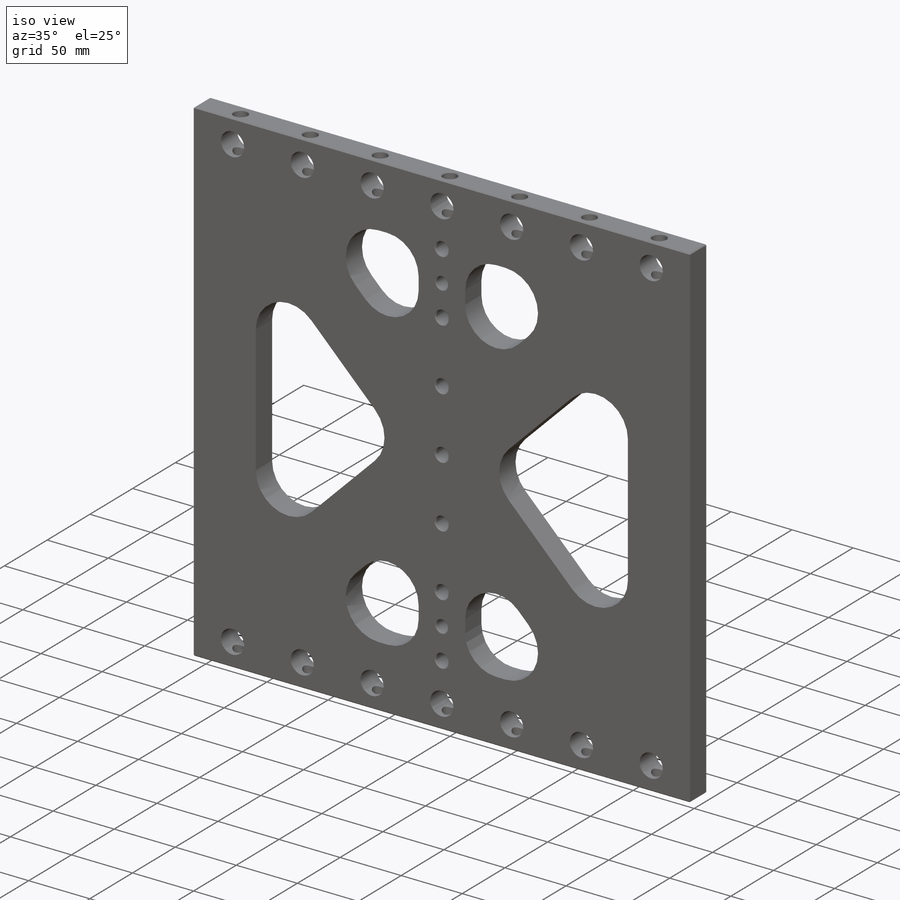
[diagram: iso view]
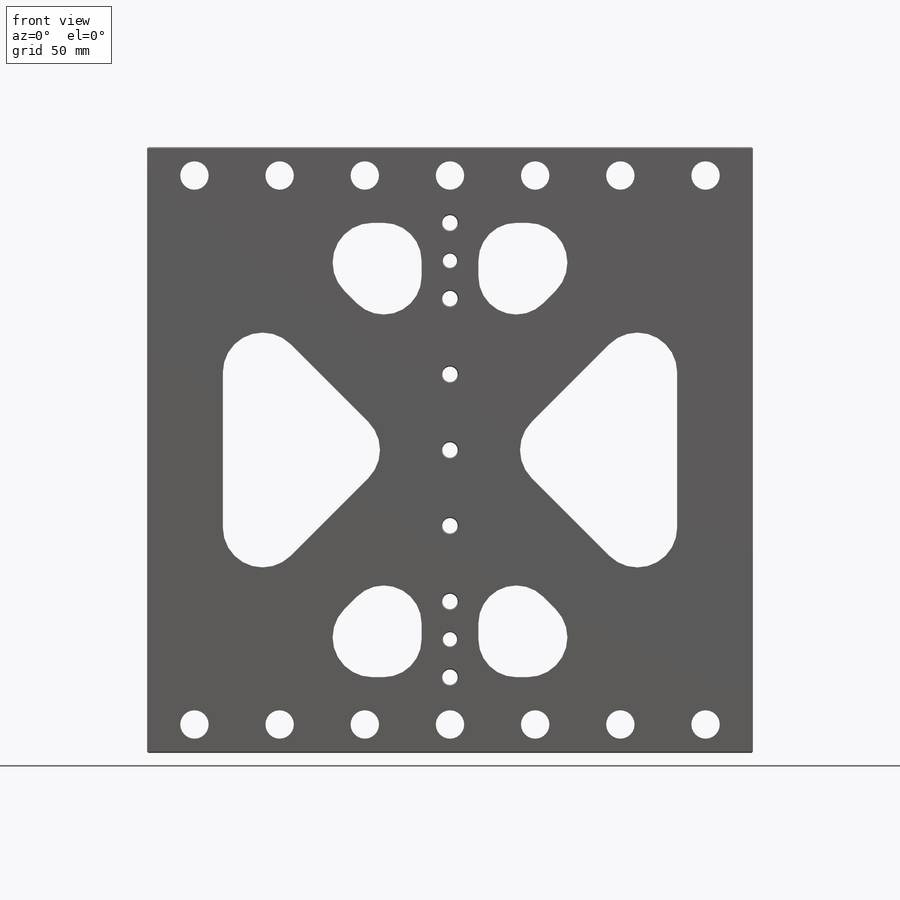
[diagram: front view]
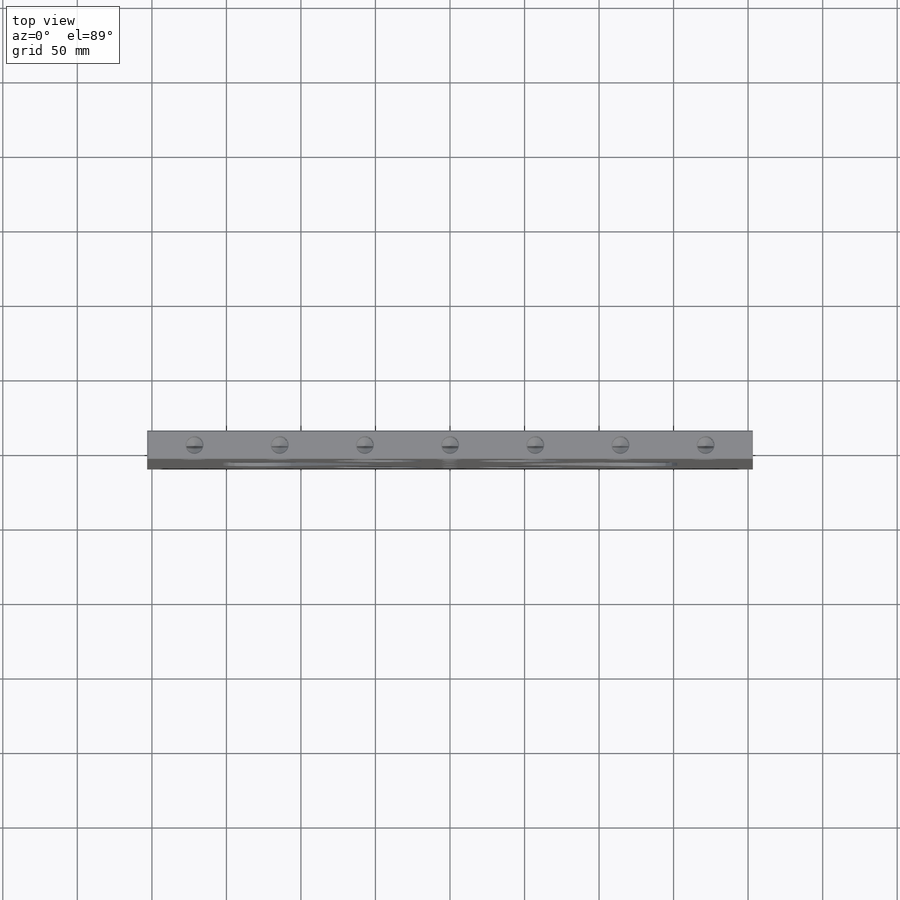
[diagram: top view]
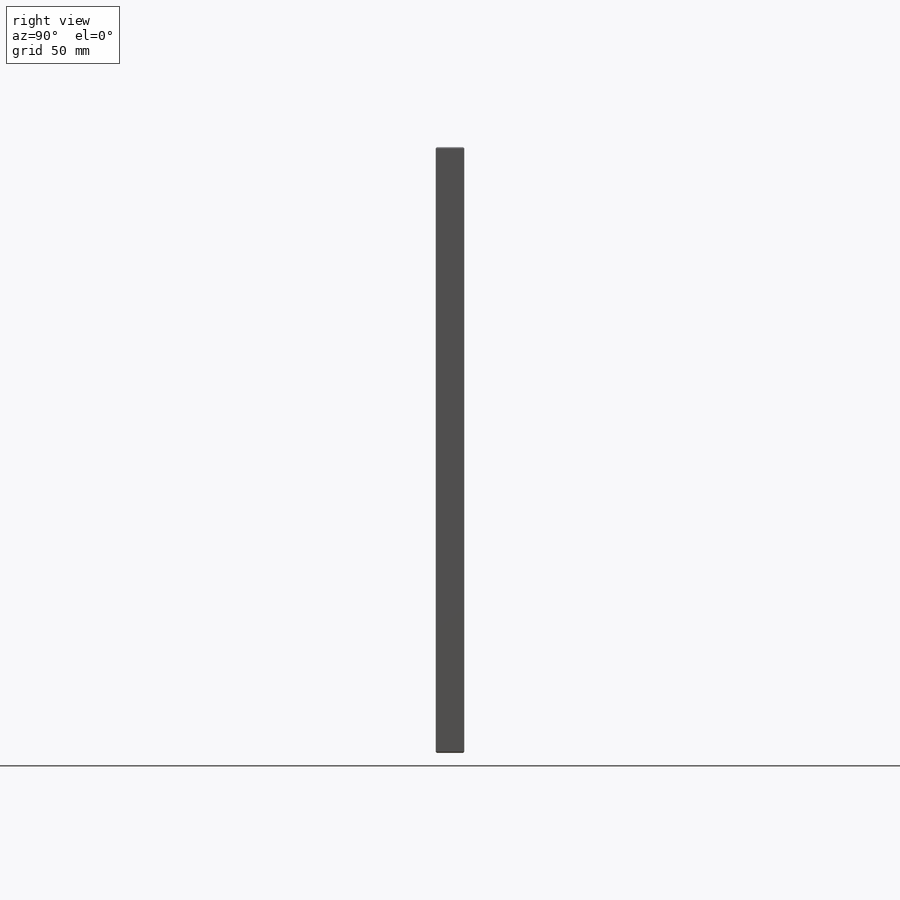
[diagram: right view]
SOLIDWORKS PART (.sldprt)
format: sldprt  version: not decoded by parser v0  size: 603,136 bytes
history: native  units: mm
features: sketch x11, hole x4, extrude x2, fillet x2, pattern_linear x2, material x1, cut_extrude x1, mirror x1, chamfer x1 (+14 scaffold rows collapsed)
feature tree (39):
  scaffold x14  (default folders/planes/origin — collapsed)
  material  "6061-T6 Al"
  sketch  "Sketch2"  dims[D1=406.4mm D2=406.4mm]
  extrude  "Extrude1"  Depth=19.05mm
  sketch  "Sketch8"  dims[D1=50.8mm D2=50.8mm D3=50.8mm]
  cut_extrude  "Triangles -- Cut-Extrude2"  [1 undecoded]
  fillet  "Triangles -- Fillet1"  Radius=26.67mm
  sketch  "Sketch14"  dims[D1=38.1mm]
  extrude  "Extrude5"  [1 undecoded]
  fillet  "Fillet3"  Radius=25.4mm
  hole  "CBORE for 3/8 Socket Head Cap Screw1"  Diameter=10.31748mm Depth=19.05mm
  sketch  "Sketch16"
  sketch  "Sketch15"  dims[hole-wizard template sketch: 42 standard entries collapsed; hole parameters kept: c12.Thru Hole Depth=19.05mm c12.C'Bore Dia.=17.4625mm c12.C'Bore Depth=4.318mm c12.Far C'Sink Dia.=11.684mm c12.D6=~2.963249mm c12.Far C'Sink Angle=82.0deg]
  pattern_linear  "LPattern5"  Count1=4 Count2=4 Spacing1=50.8mm Spacing2=50.8mm
  hole  "3/4 (0.75) Diameter Hole1"  Diameter=19.05mm Depth=19.05mm
  sketch  "Sketch11"  dims[D1=19.05mm]
  sketch  "Sketch10"  dims[hole-wizard template sketch: 60 standard entries collapsed; hole parameters kept: c18.Thru Hole Depth=19.05mm]
  hole  "7/16 (0.4375) Diameter Hole1"  Diameter=11.1125mm Depth=34.925mm
  sketch  "Sketch13"
  sketch  "Sketch12"  dims[hole-wizard template sketch: 46 standard entries collapsed; hole parameters above]
  pattern_linear  "LPattern4"  Count1=4 Count2=4 Spacing1=57.15mm Spacing2=57.15mm
  mirror  "Mirror2"
  hole  "3/8 (0.375) Pin + Lead-In Hole1"  Diameter=9.525mm Depth=19.05mm
  sketch  "Sketch18"  dims[D1=127.0mm D2=127.0mm]
  sketch  "Sketch17"  dims[hole-wizard template sketch: 42 standard entries collapsed; hole parameters kept: c12.Thru Hole Depth=19.05mm c12.C'Bore Dia.=9.5758mm c12.C'Bore Depth=3.175mm c12.Near C'Sink Dia.=10.668mm c12.D6=~4.399409mm c12.Near C'Sink Angle=82.0deg]
  chamfer  "Chamfer1"  Distance=0.762mm Angle=45deg
decode coverage: 19 of 24 modeling features carry decoded parameters
note: ~ marks probable driven/reference dimensions
note: 2 parameter values undecoded
summary: Diameter pulled from absorbed wizard sketch
note: suppression state not decoded; provenance and decode notes live in map.json
